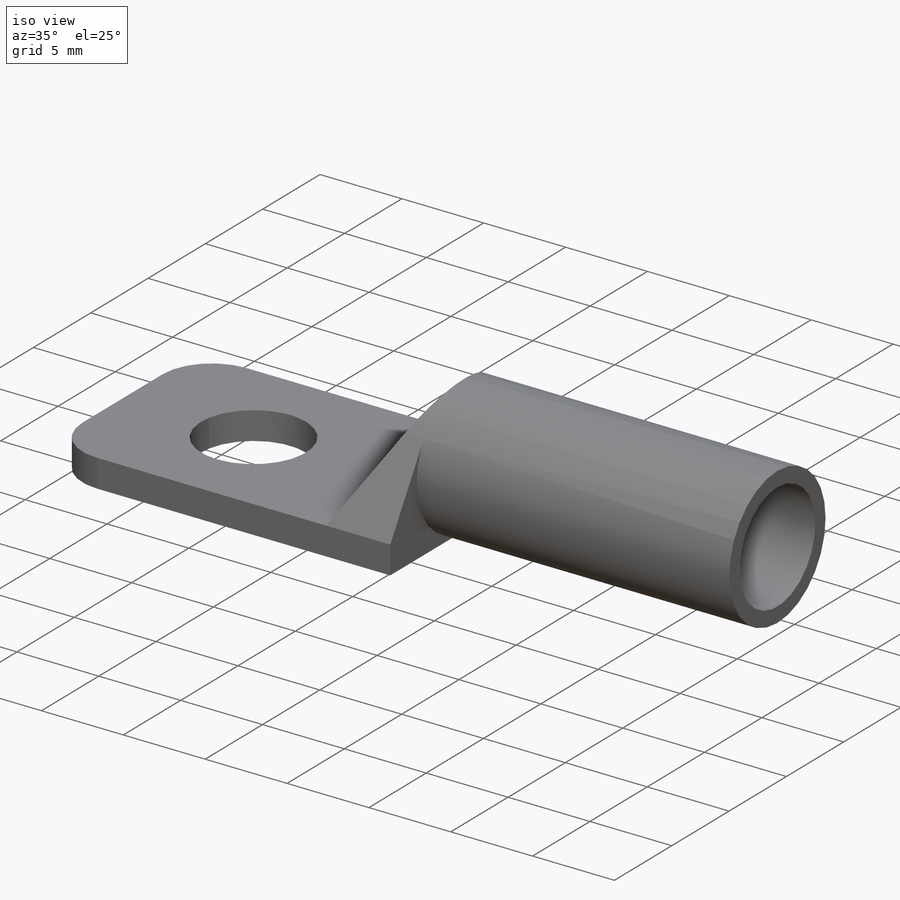
[diagram: iso view]
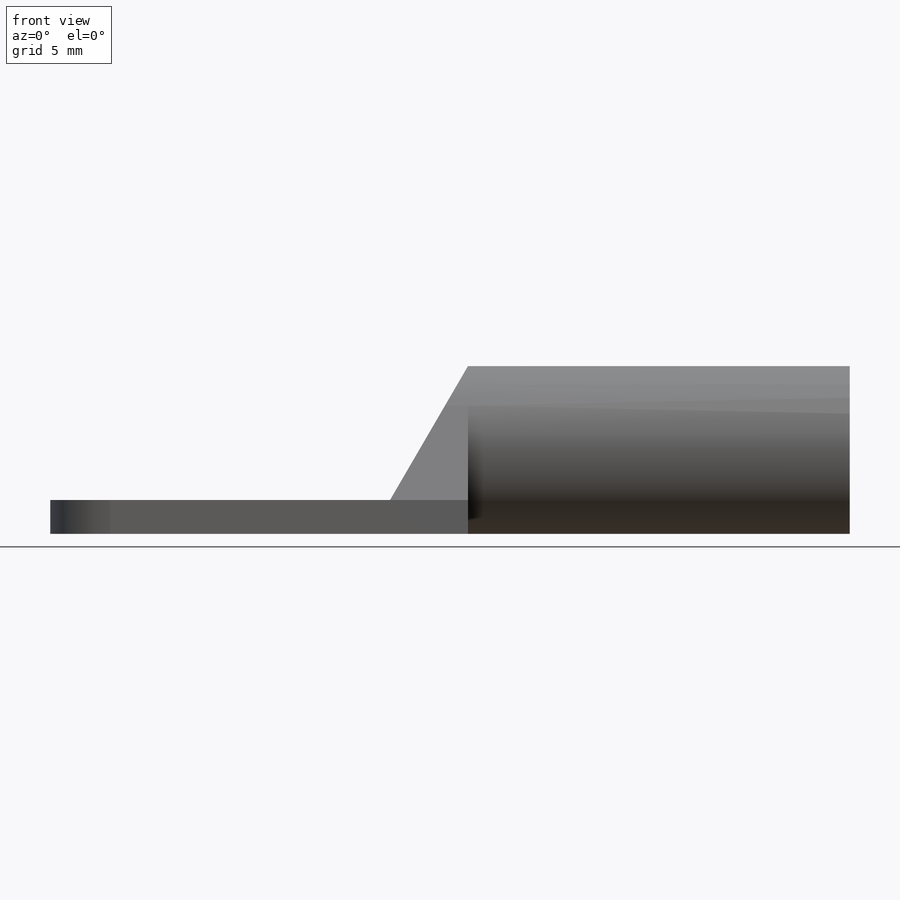
[diagram: front view]
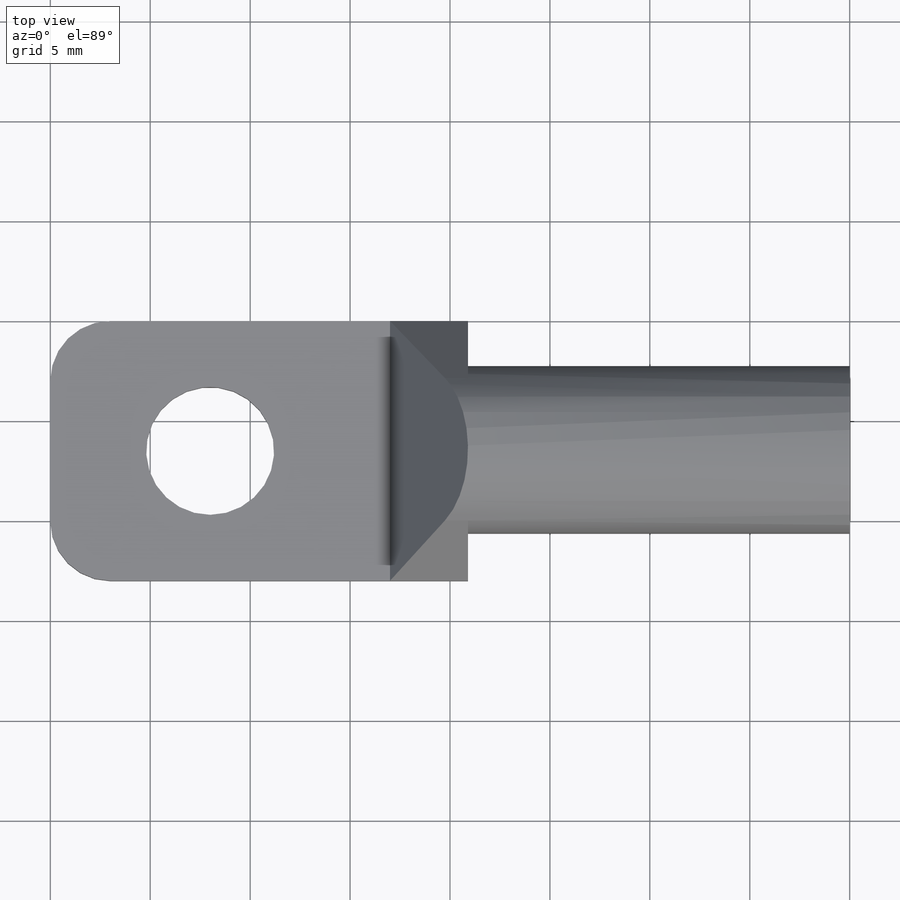
[diagram: top view]
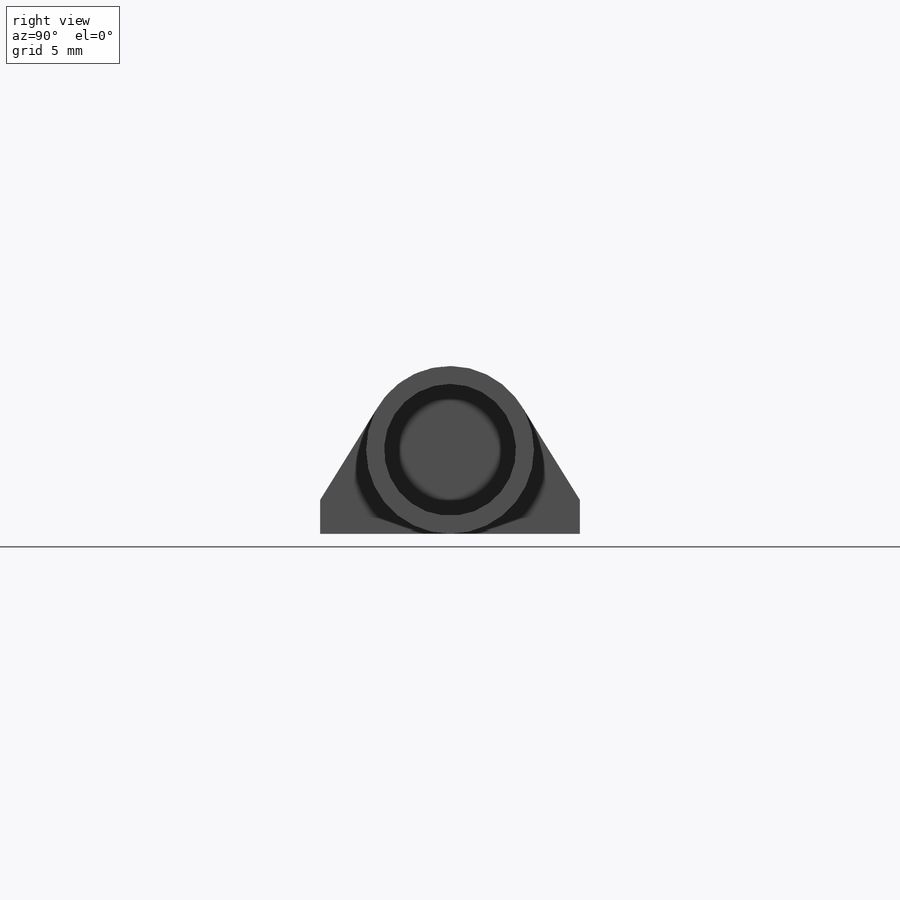
[diagram: right view]
SOLIDWORKS PART (.sldprt)
format: sldprt  version: not decoded by parser v0  size: 266,752 bytes
history: native  units: mm
features: sketch x11, cut_extrude x10, plane x3, material x1, extrude x1, fillet x1 (+9 scaffold rows collapsed)
feature tree (36):
  scaffold x9  (default folders/planes/origin — collapsed)
  material  "Material <sin especificar>"
  plane  "Alzado"
  plane  "Planta"
  plane  "Vista lateral"
  sketch  "Croquis1"  dims[D1=40.0mm D2=13.0mm]
  extrude  "Saliente-Extruir1"  Depth=13mm
  sketch  "Croquis2"  dims[D1=6.6mm]
  cut_extrude  "Cortar-Extruir1"  Depth=17mm
  sketch  "Croquis3"  dims[D1=6.4mm D2=8.0mm D3=9.0mm]
  cut_extrude  "Cortar-Extruir4"  Depth=19mm
  sketch  "Croquis7"  dims[D1=9.0mm]
  cut_extrude  "Cortar-Extruir5"  Depth=9mm
  sketch  "Croquis8"  dims[D1=8.4mm]
  cut_extrude  "Cortar-Extruir6"  Depth=19.1mm
  sketch  "Croquis9"
  cut_extrude  "Cortar-Extruir7"  Depth=2.3mm
  sketch  "Croquis10"
  cut_extrude  "Cortar-Extruir8"  Depth=2.3mm
  sketch  "Croquis11"
  cut_extrude  "Cortar-Extruir9"  Depth=22.3mm
  sketch  "Croquis13"
  cut_extrude  "Cortar-Extruir10"  Depth=22.3mm
  sketch  "Croquis14"
  cut_extrude  "Cortar-Extruir11"  Depth=22.3mm
  sketch  "Croquis15"
  cut_extrude  "Cortar-Extruir12"  Depth=32.3mm
  fillet  "Redondeo1"  Radius=3mm
decode coverage: 17 of 23 modeling features carry decoded parameters
note: suppression state not decoded; provenance and decode notes live in map.json
